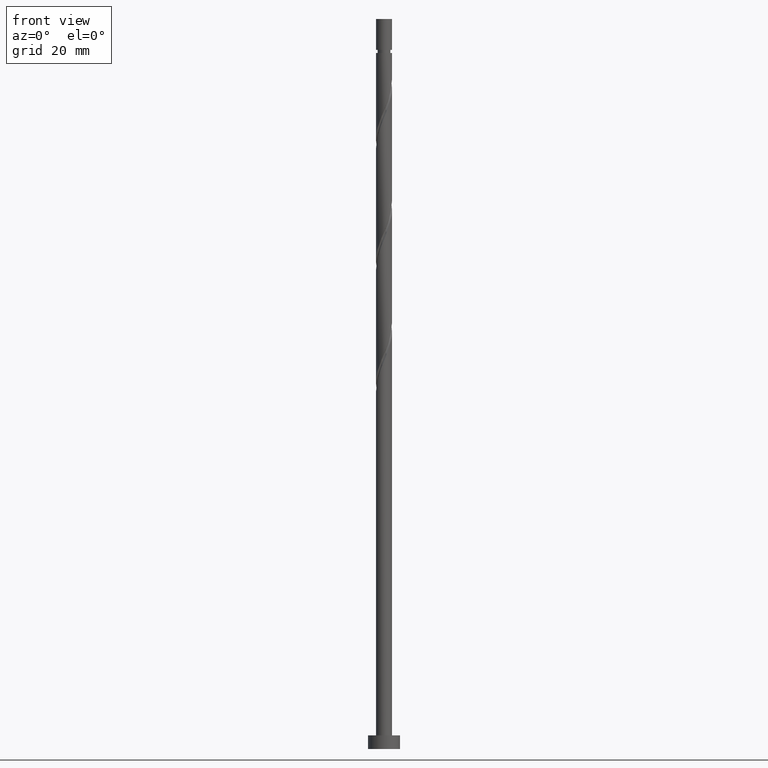
[diagram: clean part render]
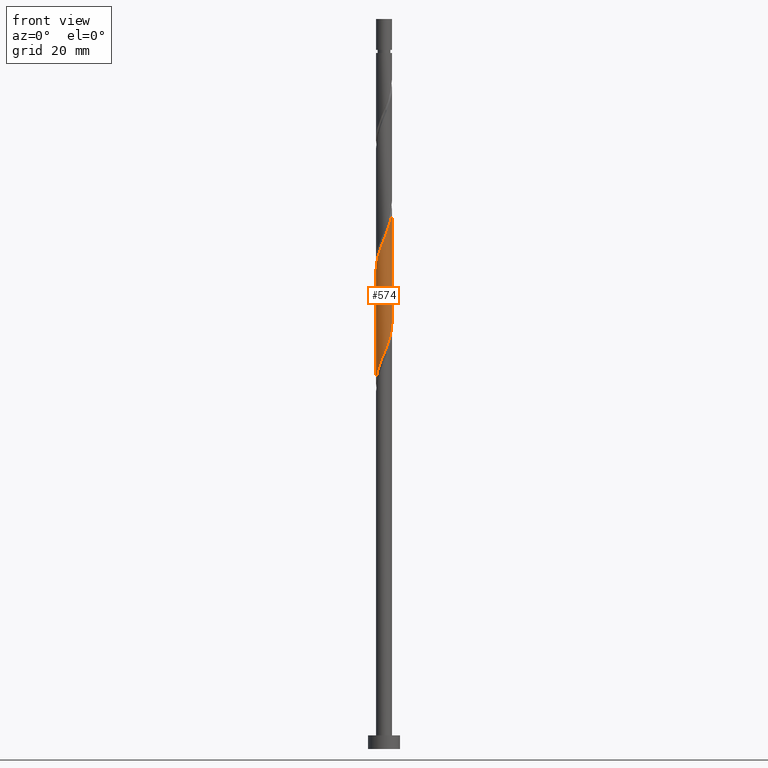
[diagram: same view with one face highlighted and labeled with its STEP entity id]
A machine part, front view. The second image highlights one B-rep face of the part: STEP entity #574.
In plain terms, the highlighted cylindrical surface (edge-blend (fillet) strip) has radius 1.75 mm, axis along (-0, -0, -1).
Its self-contained STEP definition (entity closure, byte-faithful):
#7 = CARTESIAN_POINT ( 'NONE',  ( 1.524162891183048707, -0.8598996924877582160, 116.1694033639066674 ) ) ;
#15 = CARTESIAN_POINT ( 'NONE',  ( -0.6342361581303455065, -1.631025596279859213, 110.1087973033006335 ) ) ;
#17 = CARTESIAN_POINT ( 'NONE',  ( 1.563330778801821141, -0.8257151336188601753, 91.32091851542182326 ) ) ;
#146 = CARTESIAN_POINT ( 'NONE',  ( -0.8687422358255979526, -1.539836203473951892, 109.5027366972400102 ) ) ;
#162 = CARTESIAN_POINT ( 'NONE',  ( 1.647797801975740661, -0.6407581522230126891, 116.7754639699672907 ) ) ;
#194 = ORIENTED_EDGE ( 'NONE', *, *, #936, .F. ) ;
#228 = VECTOR ( 'NONE', #1130, 1000.000000000000000 ) ;
#266 = CARTESIAN_POINT ( 'NONE',  ( -1.747104289494325169, -0.1006310172389177221, 105.2603124548158036 ) ) ;
#281 = CARTESIAN_POINT ( 'NONE',  ( 1.750000000000000000, 2.206131053765714330E-15, 93.38249420684394408 ) ) ;
#289 = CARTESIAN_POINT ( 'NONE',  ( 1.647983256157276033, -0.5887709125162859936, 91.92697912148244654 ) ) ;
#314 = EDGE_CURVE ( 'NONE', #741, #1340, #802, .T. ) ;
#371 = DIRECTION ( 'NONE',  ( -0.000000000000000000, -0.000000000000000000, -1.000000000000000000 ) ) ;
#387 = CARTESIAN_POINT ( 'NONE',  ( 0.6342361581303435081, -1.631025596279856549, 88.29061548511880630 ) ) ;
#395 = CARTESIAN_POINT ( 'NONE',  ( -0.3997300804350925607, -1.722214989085766534, 110.7148579093612284 ) ) ;
#397 = CARTESIAN_POINT ( 'NONE',  ( -1.039795711094356978, -1.429906809909688326, 84.04819124269454278 ) ) ;
#404 = CARTESIAN_POINT ( 'NONE',  ( -1.750000000000002887, 3.103540295975472544E-15, 105.0169185815754958 ) ) ;
#408 = CARTESIAN_POINT ( 'NONE',  ( -0.1490321258245771163, -1.743642573887268510, 111.3209185154218375 ) ) ;
#501 = CARTESIAN_POINT ( 'NONE',  ( 1.750000000000000222, -0.05035717141668632352, 93.26039620212571890 ) ) ;
#508 = CARTESIAN_POINT ( 'NONE',  ( -1.220161845742356199, -1.254474021331094313, 83.44213063663393370 ) ) ;
#517 = LINE ( 'NONE', #750, #228 ) ;
#521 = CARTESIAN_POINT ( 'NONE',  ( 0.8687422358255952881, -1.539836203473949450, 88.89667609117941538 ) ) ;
#523 = VERTEX_POINT ( 'NONE', #1331 ) ;
#574 = ADVANCED_FACE ( 'NONE', ( #727 ), #607, .T. ) ;
#607 = CYLINDRICAL_SURFACE ( 'NONE', #1369, 1.750000000000000000 ) ;
#613 = CARTESIAN_POINT ( 'NONE',  ( -0.1016658287859391052, -1.765070158688767377, 86.47243366693697908 ) ) ;
#623 = CARTESIAN_POINT ( 'NONE',  ( 1.068058148852059297, -1.386272624944571152, 89.50273669723999603 ) ) ;
#640 = CARTESIAN_POINT ( 'NONE',  ( -1.267374061878525415, -1.232709046415194631, 108.2906154851187921 ) ) ;
#649 = CARTESIAN_POINT ( 'NONE',  ( 1.704685323725828150, -0.3956614045794445977, 117.3815245760279282 ) ) ;
#704 = VERTEX_POINT ( 'NONE', #404 ) ;
#727 = FACE_OUTER_BOUND ( 'NONE', #1230, .T. ) ;
#735 = CARTESIAN_POINT ( 'NONE',  ( 0.000000000000000000, 0.000000000000000000, 160.0000000000000000 ) ) ;
#741 = VERTEX_POINT ( 'NONE', #1002 ) ;
#745 = CARTESIAN_POINT ( 'NONE',  ( -1.415352420340175277, -1.029212090017027847, 107.6845548790582114 ) ) ;
#750 = CARTESIAN_POINT ( 'NONE',  ( -1.750000000000000000, 0.000000000000000000, 160.0000000000000000 ) ) ;
#755 = CARTESIAN_POINT ( 'NONE',  ( 1.415352420340172612, -1.029212090017026293, 90.71485790936121418 ) ) ;
#762 = EDGE_CURVE ( 'NONE', #1340, #523, #1488, .T. ) ;
#768 = CARTESIAN_POINT ( 'NONE',  ( -1.704685323725825041, -0.3956614045794436541, 81.01788821239149740 ) ) ;
#774 = ORIENTED_EDGE ( 'NONE', *, *, #1651, .T. ) ;
#776 = CARTESIAN_POINT ( 'NONE',  ( -1.750000000000002887, 3.103540295975472544E-15, 105.0169185815754958 ) ) ;
#778 = CARTESIAN_POINT ( 'NONE',  ( 1.732635733512731591, -0.3518266914137117007, 92.53303972754305562 ) ) ;
#802 = LINE ( 'NONE', #1312, #1412 ) ;
#829 =( BOUNDED_CURVE ( )  B_SPLINE_CURVE ( 2, ( #776, #1001, #266, #1296, #1431, #1019, #745, #640, #1539, #146, #15, #395, #408, #868, #1530, #1150, #1414, #1398, #1280, #1555, #7, #162, #649, #992, #1262 ),
 .UNSPECIFIED., .F., .T. ) 
 B_SPLINE_CURVE_WITH_KNOTS ( ( 3, 2, 2, 2, 2, 2, 2, 2, 2, 2, 2, 2, 3 ),
 ( 0.3045252162417511066, 0.3068181818181817677, 0.3181818181818182323, 0.3295454545454545858, 0.3409090909090909394, 0.3522727272727272929, 0.3636363636363636465, 0.3750000000000000000, 0.3863636363636363535, 0.3977272727272727071, 0.4090909090909090606, 0.4204545454545454142, 0.4295252162417514952 ),
 .UNSPECIFIED. ) 
 CURVE ( )  GEOMETRIC_REPRESENTATION_ITEM ( )  RATIONAL_B_SPLINE_CURVE ( ( 0.9061101570135700056, 0.9072237824201522249, 0.9090909090909298218, 0.8998376744372320601, 0.9090909090909298218, 0.8998376744372320601, 0.9090909090909298218, 0.8998376744372320601, 0.9090909090909298218, 0.8998376744372320601, 0.9090909090909298218, 0.8998376744372320601, 0.9090909090909298218, 0.8998376744372320601, 0.9090909090909298218, 0.8998376744372320601, 0.9090909090909298218, 0.8998376744372320601, 0.9090909090909298218, 0.8998376744372320601, 0.9090909090909298218, 0.8998376744372320601, 0.9090909090909298218, 0.9017048011080093239, 0.9061101570135703387 ) ) 
 REPRESENTATION_ITEM ( '' )  );
#851 = CARTESIAN_POINT ( 'NONE',  ( 1.750000000000000000, 2.206131053765714330E-15, 93.38249420684394408 ) ) ;
#868 = CARTESIAN_POINT ( 'NONE',  ( 0.1016658287859384807, -1.765070158688770041, 111.9269791214824750 ) ) ;
#880 = CARTESIAN_POINT ( 'NONE',  ( 0.1490321258245759506, -1.743642573887265179, 87.07849427299760237 ) ) ;
#882 = ORIENTED_EDGE ( 'NONE', *, *, #762, .F. ) ;
#936 = EDGE_CURVE ( 'NONE', #704, #741, #829, .T. ) ;
#992 = CARTESIAN_POINT ( 'NONE',  ( 1.750000000000004663, -0.2004256229239605447, 117.8642919619375675 ) ) ;
#993 = CARTESIAN_POINT ( 'NONE',  ( -1.647797801975737775, -0.6407581522230115789, 81.62394881845210648 ) ) ;
#1001 = CARTESIAN_POINT ( 'NONE',  ( -1.750000000000003109, -0.05035717141668556024, 105.1390165862937209 ) ) ;
#1002 = CARTESIAN_POINT ( 'NONE',  ( 1.750000000000002887, 1.712555970550320905E-15, 118.3502519149088243 ) ) ;
#1019 = CARTESIAN_POINT ( 'NONE',  ( -1.563330778801824472, -0.8257151336188613966, 107.0784942729975882 ) ) ;
#1020 = CARTESIAN_POINT ( 'NONE',  ( -1.750000000000000000, -2.580051571353123545E-15, 80.04916087351060128 ) ) ;
#1085 = DIRECTION ( 'NONE',  ( -1.000000000000000000, 0.000000000000000000, 0.000000000000000000 ) ) ;
#1125 = CARTESIAN_POINT ( 'NONE',  ( -0.3482456029873181036, -1.714999999999999636, 85.86637306087637000 ) ) ;
#1130 = DIRECTION ( 'NONE',  ( -0.000000000000000000, -0.000000000000000000, -1.000000000000000000 ) ) ;
#1137 = CARTESIAN_POINT ( 'NONE',  ( 1.747104289494322282, -0.1006310172389183466, 93.13910033360365048 ) ) ;
#1144 = CARTESIAN_POINT ( 'NONE',  ( 0.3997300804350918391, -1.722214989085762982, 87.68455487905818302 ) ) ;
#1150 = CARTESIAN_POINT ( 'NONE',  ( 0.5948253771886973240, -1.664929841311235892, 113.1391003336036647 ) ) ;
#1151 = CARTESIAN_POINT ( 'NONE',  ( -1.524162891183046042, -0.8598996924877561066, 82.23000942451275819 ) ) ;
#1161 = ORIENTED_EDGE ( 'NONE', *, *, #314, .F. ) ;
#1230 = EDGE_LOOP ( 'NONE', ( #1161, #194, #774, #882 ) ) ;
#1262 = CARTESIAN_POINT ( 'NONE',  ( 1.750000000000003109, 1.712555970550320905E-15, 118.3502519149088243 ) ) ;
#1280 = CARTESIAN_POINT ( 'NONE',  ( 1.220161845742357754, -1.254474021331096756, 114.9572821517854919 ) ) ;
#1296 = CARTESIAN_POINT ( 'NONE',  ( -1.732635733512734477, -0.3518266914137117563, 105.8663730608763842 ) ) ;
#1298 = CARTESIAN_POINT ( 'NONE',  ( -0.8173105441415272621, -1.547418325610460110, 84.65425184875519449 ) ) ;
#1312 = CARTESIAN_POINT ( 'NONE',  ( 1.750000000000000000, 2.143131898507868297E-16, 160.0000000000000000 ) ) ;
#1322 = DIRECTION ( 'NONE',  ( -0.000000000000000000, -0.000000000000000000, -1.000000000000000000 ) ) ;
#1331 = CARTESIAN_POINT ( 'NONE',  ( -1.750000000000000000, -2.580051571353123545E-15, 80.04916087351060128 ) ) ;
#1340 = VERTEX_POINT ( 'NONE', #851 ) ;
#1369 = AXIS2_PLACEMENT_3D ( 'NONE', #735, #371, #1085 ) ;
#1398 = CARTESIAN_POINT ( 'NONE',  ( 1.039795711094358976, -1.429906809909690768, 114.3512215457248828 ) ) ;
#1399 = CARTESIAN_POINT ( 'NONE',  ( -1.400527980390354532, -1.079041232752500523, 82.83607003057332463 ) ) ;
#1408 = CARTESIAN_POINT ( 'NONE',  ( -1.749999999999999778, -0.2004256229239634035, 80.53512082648187231 ) ) ;
#1412 = VECTOR ( 'NONE', #1322, 1000.000000000000000 ) ;
#1414 = CARTESIAN_POINT ( 'NONE',  ( 0.8173105441415277062, -1.547418325610463441, 113.7451609396642596 ) ) ;
#1424 = CARTESIAN_POINT ( 'NONE',  ( 1.267374061878523861, -1.232709046415192411, 90.10879730330060511 ) ) ;
#1431 = CARTESIAN_POINT ( 'NONE',  ( -1.647983256157279808, -0.5887709125162861046, 106.4724336669369933 ) ) ;
#1488 =( BOUNDED_CURVE ( )  B_SPLINE_CURVE ( 2, ( #281, #501, #1137, #778, #289, #17, #755, #1424, #623, #521, #387, #1144, #880, #613, #1125, #1564, #1298, #397, #508, #1399, #1151, #993, #768, #1408, #1020 ),
 .UNSPECIFIED., .F., .T. ) 
 B_SPLINE_CURVE_WITH_KNOTS ( ( 3, 2, 2, 2, 2, 2, 2, 2, 2, 2, 2, 2, 3 ),
 ( 0.8045252162417511066, 0.8068181818181817677, 0.8181818181818182323, 0.8295454545454545858, 0.8409090909090909394, 0.8522727272727272929, 0.8636363636363636465, 0.8750000000000000000, 0.8863636363636363535, 0.8977272727272727071, 0.9090909090909090606, 0.9204545454545454142, 0.9295252162417513286 ),
 .UNSPECIFIED. ) 
 CURVE ( )  GEOMETRIC_REPRESENTATION_ITEM ( )  RATIONAL_B_SPLINE_CURVE ( ( 0.9061101570135630112, 0.9072237824201452305, 0.9090909090909228274, 0.8998376744372251768, 0.9090909090909228274, 0.8998376744372251768, 0.9090909090909228274, 0.8998376744372251768, 0.9090909090909228274, 0.8998376744372251768, 0.9090909090909228274, 0.8998376744372251768, 0.9090909090909228274, 0.8998376744372251768, 0.9090909090909228274, 0.8998376744372251768, 0.9090909090909228274, 0.8998376744372251768, 0.9090909090909228274, 0.8998376744372251768, 0.9090909090909228274, 0.8998376744372251768, 0.9090909090909228274, 0.9017048011080026626, 0.9061101570135631222 ) ) 
 REPRESENTATION_ITEM ( '' )  );
#1530 = CARTESIAN_POINT ( 'NONE',  ( 0.3482456029873179926, -1.715000000000002300, 112.5330397275430556 ) ) ;
#1539 = CARTESIAN_POINT ( 'NONE',  ( -1.068058148852061517, -1.386272624944573373, 108.8966760911794012 ) ) ;
#1555 = CARTESIAN_POINT ( 'NONE',  ( 1.400527980390356753, -1.079041232752502744, 115.5633427578460726 ) ) ;
#1564 = CARTESIAN_POINT ( 'NONE',  ( -0.5948253771886971020, -1.664929841311231895, 85.26031245481573251 ) ) ;
#1651 = EDGE_CURVE ( 'NONE', #704, #523, #517, .T. ) ;